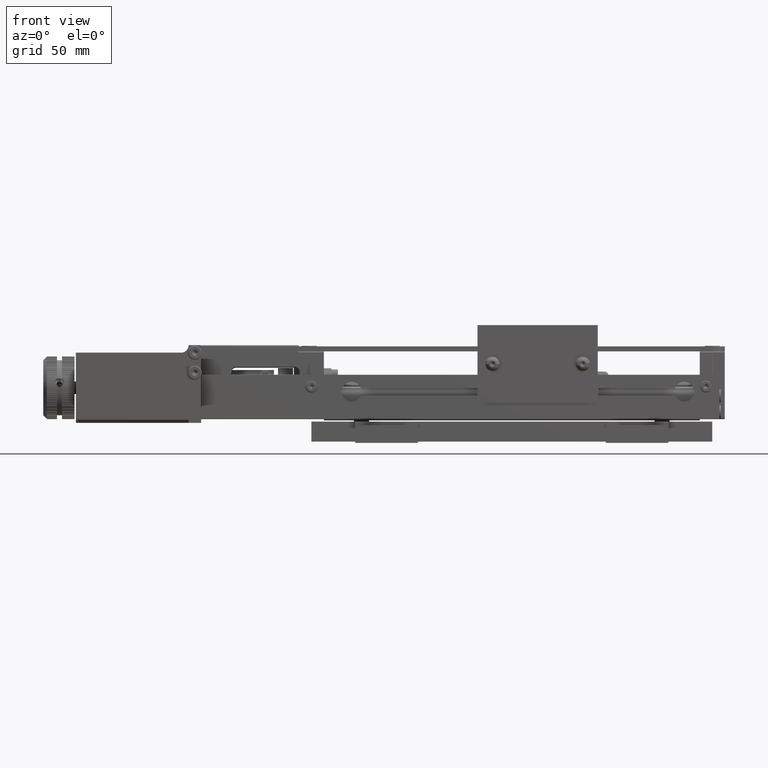
[diagram: clean part render]
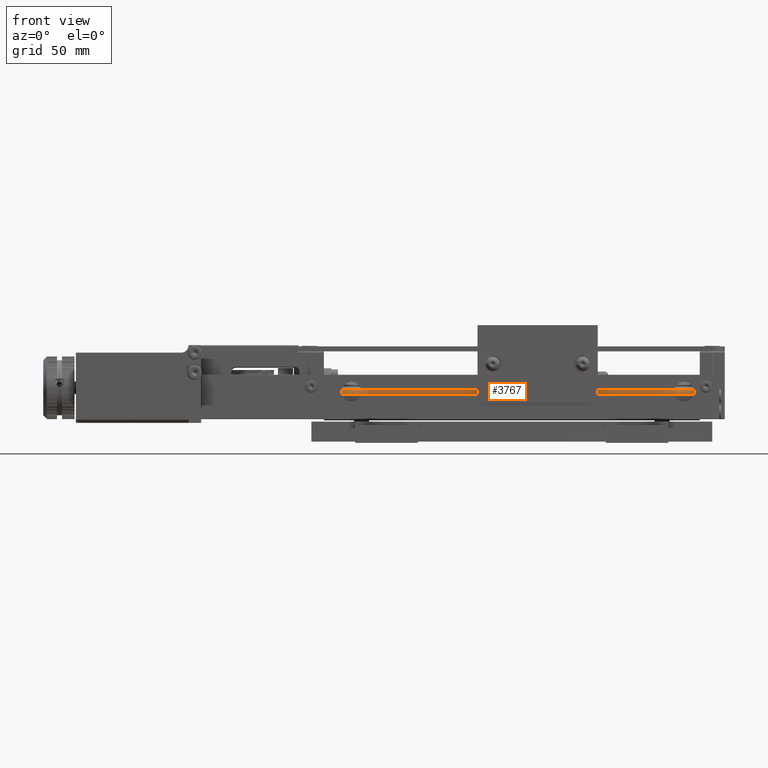
[diagram: same view with one face highlighted and labeled with its STEP entity id]
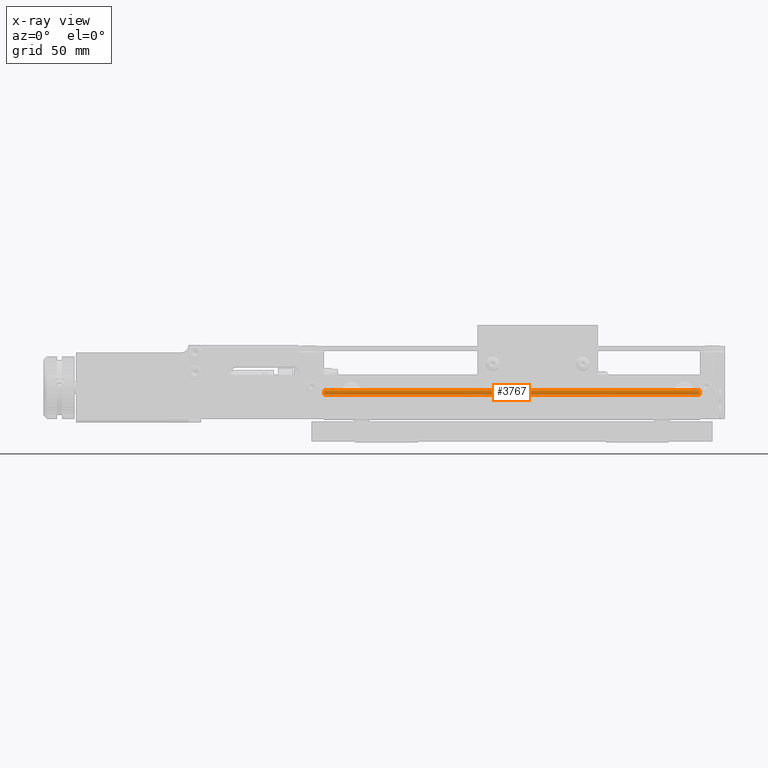
[diagram: x-ray of the same camera — body ghosted, the highlighted face saturated]
A machine part, front view. The second image highlights one B-rep face of the part: STEP entity #3767.
The next image is the same camera in x-ray: the body ghosted, the highlighted face saturated — about 0% of this face is hidden behind the body in this view.
In plain terms, the highlighted cylindrical surface (edge-blend (fillet) strip) has radius 2 mm, axis along (-1, 0, 0).
Its self-contained STEP definition (entity closure, byte-faithful):
#3767=ADVANCED_FACE('',(#6104),#40893,.T.);
#6104=FACE_OUTER_BOUND('',#8600,.T.);
#8600=EDGE_LOOP('',(#19571,#19572,#19573,#19574));
#19571=ORIENTED_EDGE('',*,*,#28123,.T.);
#19572=ORIENTED_EDGE('',*,*,#28122,.F.);
#19573=ORIENTED_EDGE('',*,*,#28124,.T.);
#19574=ORIENTED_EDGE('',*,*,#27777,.F.);
#27777=EDGE_CURVE('',#39573,#39574,#32892,.T.);
#28122=EDGE_CURVE('',#39791,#39790,#33085,.T.);
#28123=EDGE_CURVE('',#39573,#39790,#35498,.T.);
#28124=EDGE_CURVE('',#39791,#39574,#35499,.T.);
#32892=B_SPLINE_CURVE_WITH_KNOTS('',1,(#78328,#78329),.UNSPECIFIED.,.F.,
 .F.,(2,2),(0.,150.),.UNSPECIFIED.);
#33085=B_SPLINE_CURVE_WITH_KNOTS('',1,(#79612,#79613),.UNSPECIFIED.,.F.,
 .F.,(2,2),(0.,150.),.UNSPECIFIED.);
#35498=(
BOUNDED_CURVE()
B_SPLINE_CURVE(2,(#79614,#79615,#79616),.UNSPECIFIED.,.F.,.F.)
B_SPLINE_CURVE_WITH_KNOTS((3,3),(0.,2.44243955600694),.UNSPECIFIED.)
CURVE()
GEOMETRIC_REPRESENTATION_ITEM()
RATIONAL_B_SPLINE_CURVE((1.,0.819298479106794,1.))
REPRESENTATION_ITEM('')
);
#35499=(
BOUNDED_CURVE()
B_SPLINE_CURVE(2,(#79617,#79618,#79619),.UNSPECIFIED.,.F.,.F.)
B_SPLINE_CURVE_WITH_KNOTS((3,3),(0.,2.44243955600695),.UNSPECIFIED.)
CURVE()
GEOMETRIC_REPRESENTATION_ITEM()
RATIONAL_B_SPLINE_CURVE((1.,0.819298479106793,1.))
REPRESENTATION_ITEM('')
);
#39573=VERTEX_POINT('',#61141);
#39574=VERTEX_POINT('',#61142);
#39790=VERTEX_POINT('',#61358);
#39791=VERTEX_POINT('',#61359);
#40893=CYLINDRICAL_SURFACE('',#42780,1.99999999570003);
#42780=AXIS2_PLACEMENT_3D('',#54178,#44846,$);
#44846=DIRECTION('',(-1.,0.,0.));
#54178=CARTESIAN_POINT('',(50.9999994574969,-19.700000845787,19.1815596086048));
#61141=CARTESIAN_POINT('',(-24.0000005425031,-20.3850008414871,21.0605952625049));
#61142=CARTESIAN_POINT('',(125.999999457497,-20.385000841487,21.0605952625049));
#61358=CARTESIAN_POINT('',(-24.0000005425031,-21.7000008414871,19.1815596025486));
#61359=CARTESIAN_POINT('',(125.999999457497,-21.700000841487,19.1815596025486));
#78328=CARTESIAN_POINT('',(-24.0000005425031,-20.3850008414871,21.0605952625049));
#78329=CARTESIAN_POINT('',(125.999999457497,-20.385000841487,21.0605952625049));
#79612=CARTESIAN_POINT('',(125.999999457497,-21.700000841487,19.1815596025486));
#79613=CARTESIAN_POINT('',(-24.0000005425031,-21.7000008414871,19.1815596025486));
#79614=CARTESIAN_POINT('',(-24.0000005425031,-20.3850008414871,21.0605952625049));
#79615=CARTESIAN_POINT('',(-24.0000005425031,-21.7000008457254,20.5812137269031));
#79616=CARTESIAN_POINT('',(-24.0000005425031,-21.7000008414871,19.1815596025486));
#79617=CARTESIAN_POINT('',(125.999999457497,-21.700000841487,19.1815596025485));
#79618=CARTESIAN_POINT('',(125.999999457497,-21.7000008457254,20.5812137269031));
#79619=CARTESIAN_POINT('',(125.999999457497,-20.385000841487,21.0605952625049));